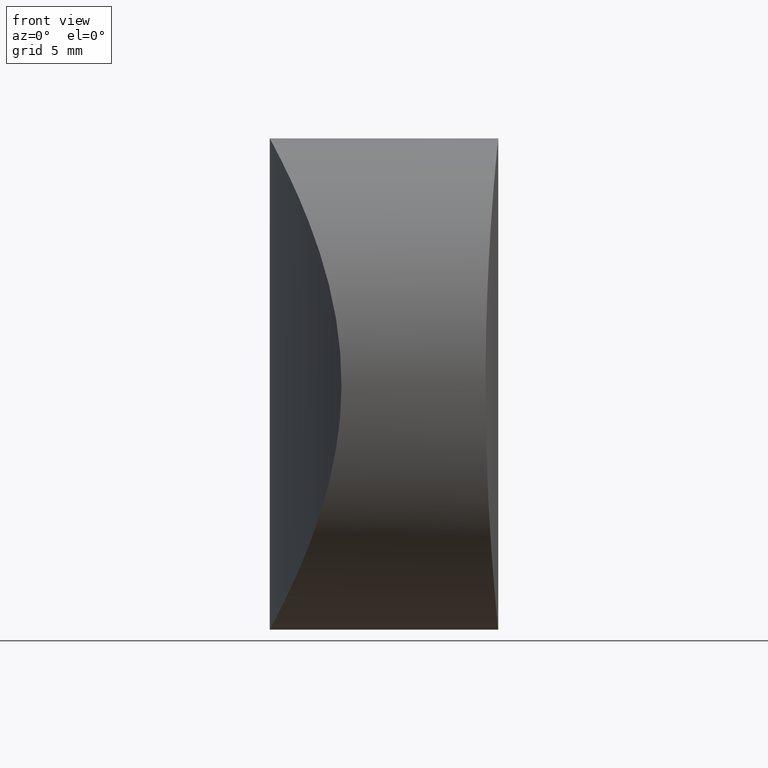
[diagram: clean part render]
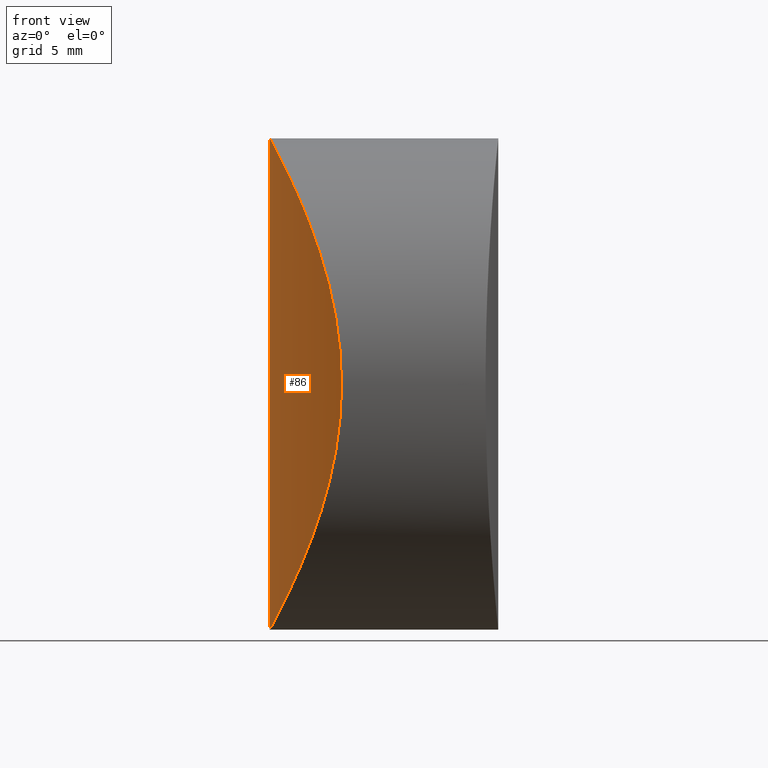
[diagram: same view with one face highlighted and labeled with its STEP entity id]
A machine part, front view. The second image highlights one B-rep face of the part: STEP entity #86.
In plain terms, the highlighted cylindrical surface (partial cylindrical patch) has radius 21.74 mm, axis along (-0, -0, -1).
Its self-contained STEP definition (entity closure, byte-faithful):
#2 = B_SPLINE_CURVE_WITH_KNOTS ( 'NONE', 3,
 ( #18, #132, #47, #161, #20, #249, #364, #106, #76, #194, #311, #54, #118, #174, #166, #200, #288, #89, #198, #32, #30, #295, #234, #56, #113, #289, #145, #26, #171, #368, #317, #262, #345, #82, #297, #315, #139, #291, #3, #28, #204, #142, #116, #320, #255, #111, #60, #257, #53, #259 ),
 .UNSPECIFIED., .F., .F.,
 ( 4, 2, 2, 2, 2, 2, 2, 2, 2, 2, 2, 2, 2, 2, 2, 2, 2, 2, 2, 2, 2, 2, 2, 2, 4 ),
 ( 0.000000000000000000, 0.002332460034129029639, 0.003498690051193543375, 0.004664920068258057544, 0.006997380102387087616, 0.008163610119451604821, 0.009329840136516120291, 0.01049607015358063576, 0.01166230017064515297, 0.01399476020477418217, 0.01516099022183869591, 0.01632722023890320964, 0.01865968027303223017, 0.02099214030716125418, 0.02215837032422577138, 0.02332460034129027818, 0.02565706037541928136, 0.02682329039248378469, 0.02798952040954828455, 0.02915575042661279134, 0.03032198044367729120, 0.03265444047780629439, 0.03382067049487080118, 0.03498690051193531492, 0.03731936054606431463 ),
 .UNSPECIFIED. ) ;
#3 = CARTESIAN_POINT ( 'NONE',  ( 1.422428601362523581, -7.740781751606417238, 20.48137352358924801 ) ) ;
#18 = CARTESIAN_POINT ( 'NONE',  ( -1.387778780781445676E-14, 1.432836755002403087E-15, 0.000000000000000000 ) ) ;
#20 = CARTESIAN_POINT ( 'NONE',  ( 0.2155747700643544651, -3.077103223239908925, 0.4051839034303297837 ) ) ;
#26 = CARTESIAN_POINT ( 'NONE',  ( 3.223265934236171582, -11.39150033726429179, 14.39685331042552541 ) ) ;
#28 = CARTESIAN_POINT ( 'NONE',  ( 1.210284504267568284, -7.159203260769887223, 20.96164303770010306 ) ) ;
#29 = DIRECTION ( 'NONE',  ( -0.000000000000000000, -0.000000000000000000, -1.000000000000000000 ) ) ;
#30 = CARTESIAN_POINT ( 'NONE',  ( 3.025179195936434251, -11.06349310497741101, 7.873883219777335185 ) ) ;
#32 = CARTESIAN_POINT ( 'NONE',  ( 2.947937650750859007, -10.93227795703746885, 7.514390368155059008 ) ) ;
#45 = DIRECTION ( 'NONE',  ( -0.000000000000000000, -0.000000000000000000, -1.000000000000000000 ) ) ;
#46 = EDGE_CURVE ( 'NONE', #195, #252, #167, .T. ) ;
#47 = CARTESIAN_POINT ( 'NONE',  ( 0.04285845775192359541, -1.563333944474102788, 0.07910009200988064870 ) ) ;
#53 = CARTESIAN_POINT ( 'NONE',  ( -1.392860978464971162E-14, -0.7902025822976713743, 23.39999999999998792 ) ) ;
#54 = CARTESIAN_POINT ( 'NONE',  ( 1.422744937138785248, -7.741579786913382222, 2.919370312651639043 ) ) ;
#56 = CARTESIAN_POINT ( 'NONE',  ( 3.365384741177640748, -11.62041709446674354, 10.13239785273151305 ) ) ;
#60 = CARTESIAN_POINT ( 'NONE',  ( 0.1660015290229336082, -2.708688890726477894, 23.08877113486291321 ) ) ;
#61 = FACE_OUTER_BOUND ( 'NONE', #163, .T. ) ;
#76 = CARTESIAN_POINT ( 'NONE',  ( 0.8086732756216740148, -5.911348775935032052, 1.574587453261813152 ) ) ;
#82 = CARTESIAN_POINT ( 'NONE',  ( 2.184259034293712265, -9.500337694175719605, 18.53938992836294020 ) ) ;
#86 = ADVANCED_FACE ( 'NONE', ( #61 ), #293, .T. ) ;
#89 = CARTESIAN_POINT ( 'NONE',  ( 2.500510767972878856, -10.13363792806505614, 5.803525538992461819 ) ) ;
#106 = CARTESIAN_POINT ( 'NONE',  ( 0.6296649646665276601, -5.244302668428569625, 1.213140049391025821 ) ) ;
#111 = CARTESIAN_POINT ( 'NONE',  ( 0.2171290689899616488, -3.087936043502371053, 22.99185630519144752 ) ) ;
#113 = CARTESIAN_POINT ( 'NONE',  ( 3.416734608021715136, -11.69980963203958346, 10.90693945828489575 ) ) ;
#116 = CARTESIAN_POINT ( 'NONE',  ( 0.6304195769015005224, -5.246898284961703851, 22.18532234802028924 ) ) ;
#118 = CARTESIAN_POINT ( 'NONE',  ( 1.530735416501544321, -8.018406199201798756, 3.171517490182088839 ) ) ;
#132 = CARTESIAN_POINT ( 'NONE',  ( -1.392296289833480181E-14, -0.7896565852898700388, -9.035018104045945883E-17 ) ) ;
#135 = ORIENTED_EDGE ( 'NONE', *, *, #365, .T. ) ;
#139 = CARTESIAN_POINT ( 'NONE',  ( 1.748259531219496621, -8.546318020887106570, 19.69939578442397377 ) ) ;
#142 = CARTESIAN_POINT ( 'NONE',  ( 0.8087231052829361166, -5.911254635353943243, 21.82525117325589292 ) ) ;
#144 = DIRECTION ( 'NONE',  ( -1.000000000000000000, 0.000000000000000000, 0.000000000000000000 ) ) ;
#145 = CARTESIAN_POINT ( 'NONE',  ( 3.365872698489835724, -11.62116721729539925, 13.26066119162392454 ) ) ;
#161 = CARTESIAN_POINT ( 'NONE',  ( 0.1651254470469942226, -2.701477198851466976, 0.3095718751465247331 ) ) ;
#163 = EDGE_LOOP ( 'NONE', ( #135, #226 ) ) ;
#166 = CARTESIAN_POINT ( 'NONE',  ( 1.858106873842140461, -8.798117498257193247, 3.978309649546841964 ) ) ;
#167 = LINE ( 'NONE', #190, #246 ) ;
#171 = CARTESIAN_POINT ( 'NONE',  ( 3.164755822425038279, -11.29626628819292833, 14.77163951491083793 ) ) ;
#174 = CARTESIAN_POINT ( 'NONE',  ( 1.748412977376857969, -8.546675452954140439, 3.700988148681173762 ) ) ;
#190 = CARTESIAN_POINT ( 'NONE',  ( -1.387778780781445676E-14, 0.000000000000000000, 23.39999999999999858 ) ) ;
#194 = CARTESIAN_POINT ( 'NONE',  ( 1.107008075324726226, -6.856855324027293364, 2.212216224878578608 ) ) ;
#195 = VERTEX_POINT ( 'NONE', #306 ) ;
#198 = CARTESIAN_POINT ( 'NONE',  ( 2.695766784431988583, -10.49093017339420264, 6.464878093353545907 ) ) ;
#200 = CARTESIAN_POINT ( 'NONE',  ( 2.076402670122011074, -9.275747185079907808, 4.559139579861329672 ) ) ;
#204 = CARTESIAN_POINT ( 'NONE',  ( 1.105855354865703521, -6.853327346297091616, 21.19027475660608317 ) ) ;
#208 = CARTESIAN_POINT ( 'NONE',  ( 21.73999999999999844, 0.000000000000000000, 23.39999999999999858 ) ) ;
#222 = CARTESIAN_POINT ( 'NONE',  ( -1.387778780781445676E-14, 1.432836755002403087E-15, 0.000000000000000000 ) ) ;
#226 = ORIENTED_EDGE ( 'NONE', *, *, #46, .T. ) ;
#234 = CARTESIAN_POINT ( 'NONE',  ( 3.221713588329055522, -11.38898209740907141, 8.992334165693707249 ) ) ;
#246 = VECTOR ( 'NONE', #45, 1000.000000000000000 ) ;
#249 = CARTESIAN_POINT ( 'NONE',  ( 0.3350743667355893241, -3.820812002700966659, 0.6346111436687870144 ) ) ;
#252 = VERTEX_POINT ( 'NONE', #222 ) ;
#255 = CARTESIAN_POINT ( 'NONE',  ( 0.3369451215246287434, -3.831261409855714284, 22.76177218329880958 ) ) ;
#257 = CARTESIAN_POINT ( 'NONE',  ( 0.04292725376565816736, -1.565840469037733884, 23.32078127759277564 ) ) ;
#259 = CARTESIAN_POINT ( 'NONE',  ( -1.387778780781445676E-14, 0.000000000000000000, 23.39999999999999858 ) ) ;
#262 = CARTESIAN_POINT ( 'NONE',  ( 2.697069189340317585, -10.49332970781068752, 16.93085192670971750 ) ) ;
#282 = AXIS2_PLACEMENT_3D ( 'NONE', #208, #29, #144 ) ;
#288 = CARTESIAN_POINT ( 'NONE',  ( 2.185482351053671390, -9.502824864673060645, 4.864169635445910522 ) ) ;
#289 = CARTESIAN_POINT ( 'NONE',  ( 3.416977289869437495, -11.70018969140565090, 12.48743357428846501 ) ) ;
#291 = CARTESIAN_POINT ( 'NONE',  ( 1.530558240007194204, -8.017961239284881358, 20.22890275447698727 ) ) ;
#293 = CYLINDRICAL_SURFACE ( 'NONE', #282, 21.74000000000001265 ) ;
#295 = CARTESIAN_POINT ( 'NONE',  ( 3.162365164716455901, -11.29233728414770965, 8.614036947591293014 ) ) ;
#297 = CARTESIAN_POINT ( 'NONE',  ( 2.075653073014932293, -9.274142514483509459, 18.84290016506243504 ) ) ;
#306 = CARTESIAN_POINT ( 'NONE',  ( -1.387778780781445676E-14, 0.000000000000000000, 23.39999999999999858 ) ) ;
#311 = CARTESIAN_POINT ( 'NONE',  ( 1.211109342946814715, -7.161533304904748931, 2.440196760933348141 ) ) ;
#315 = CARTESIAN_POINT ( 'NONE',  ( 1.857837929807548250, -8.797493441792276769, 19.42236047388499287 ) ) ;
#317 = CARTESIAN_POINT ( 'NONE',  ( 2.950137525748458334, -10.93606710626871958, 15.87586892828110230 ) ) ;
#320 = CARTESIAN_POINT ( 'NONE',  ( 0.4050502599883626376, -4.192457680666223929, 22.62972004145027327 ) ) ;
#345 = CARTESIAN_POINT ( 'NONE',  ( 2.500892373585559270, -10.13447688950724235, 17.59551200137169857 ) ) ;
#364 = CARTESIAN_POINT ( 'NONE',  ( 0.4035763903870785430, -4.185088588869004589, 0.7673987986041570508 ) ) ;
#365 = EDGE_CURVE ( 'NONE', #252, #195, #2, .T. ) ;
#368 = CARTESIAN_POINT ( 'NONE',  ( 3.027785400051440146, -11.06789740988633142, 15.51342998985916211 ) ) ;